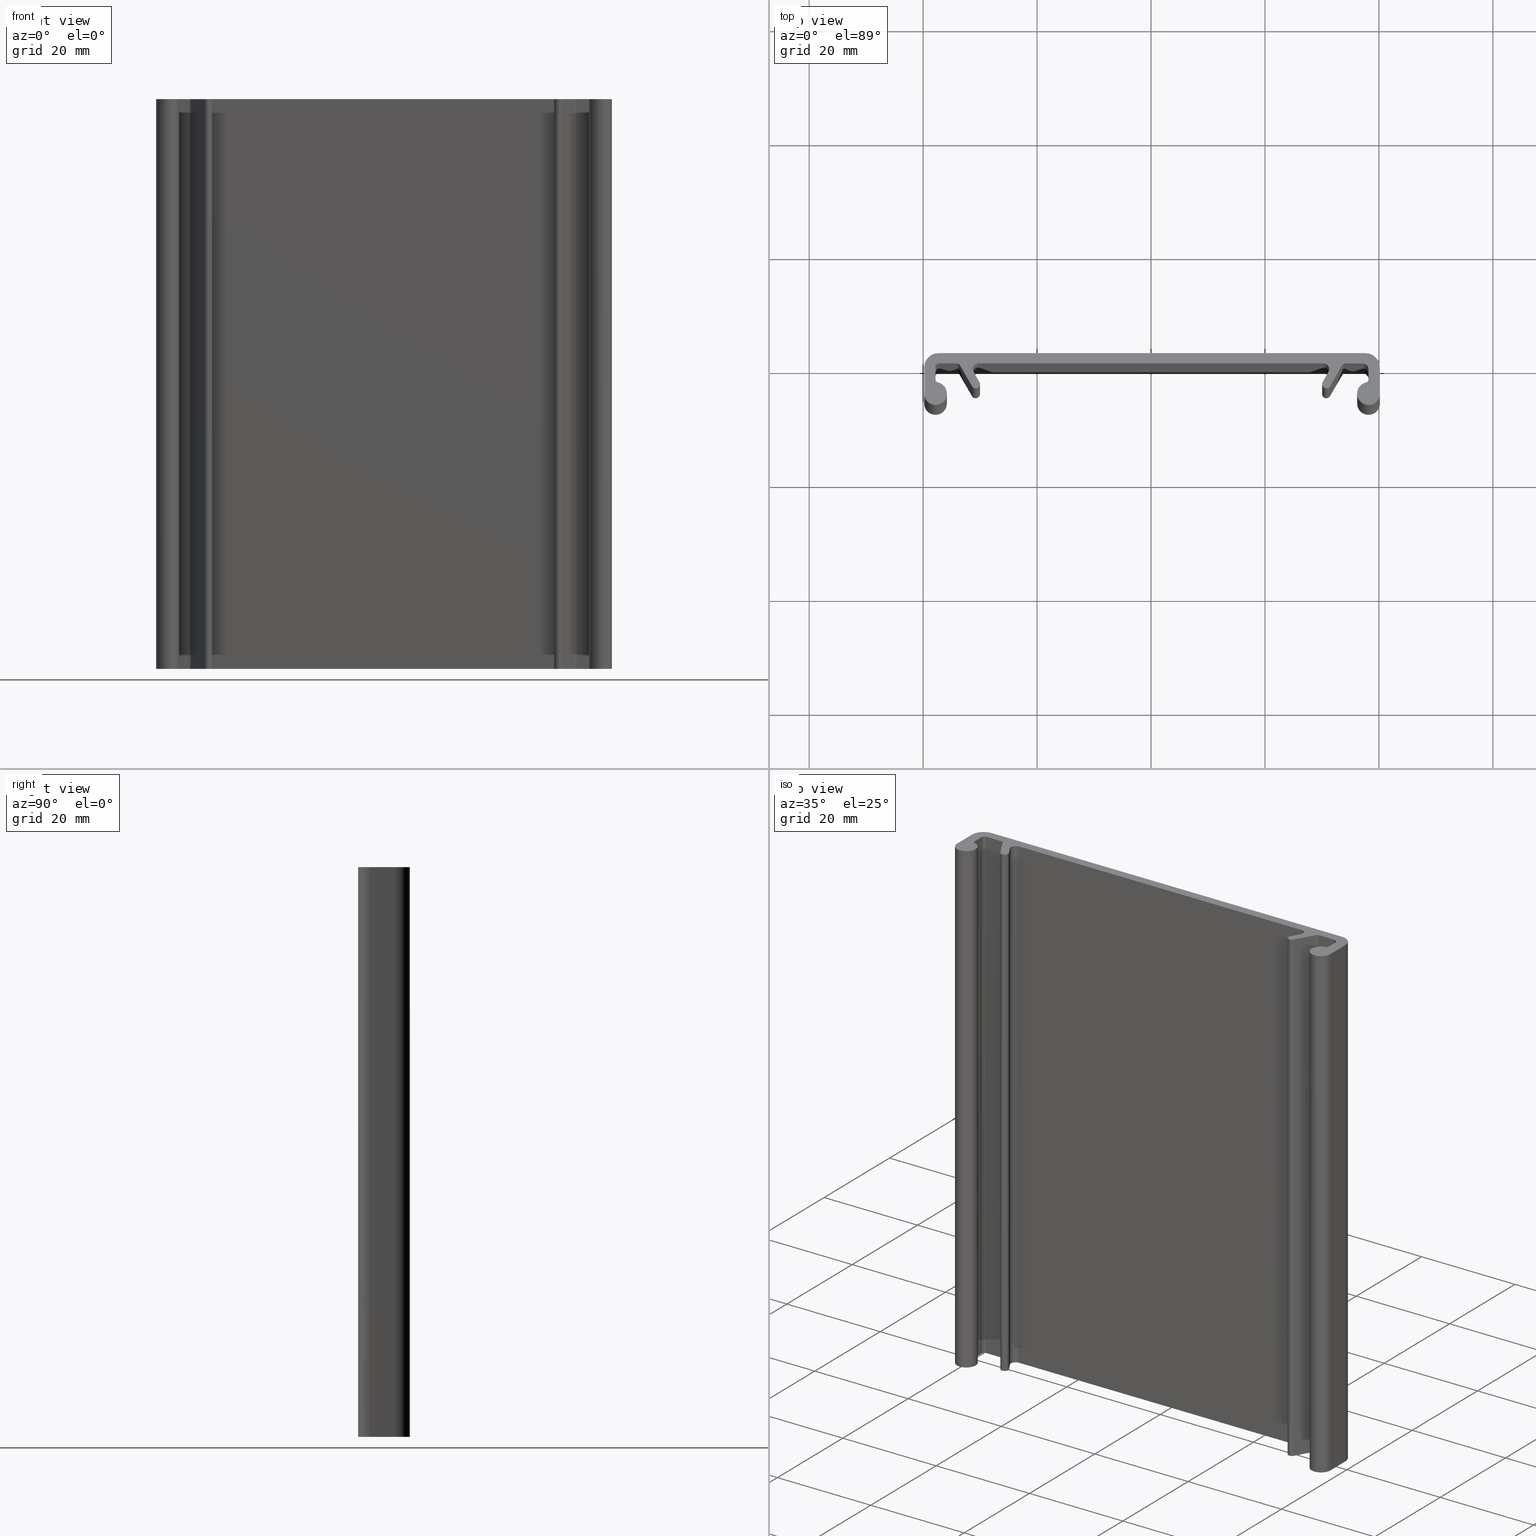
[diagram: canonical four-view strip — front | top / right | iso, engineering-drawing reading convention]
A machine part, canonical four-view strip (front | top / right | iso — engineering-drawing reading convention). The complete STEP part file that produces these views, byte-faithful:
ISO-10303-21;
HEADER;
/* Generated by software containing ST-Developer
 * from STEP Tools, Inc. (www.steptools.com) 
 */

FILE_DESCRIPTION(
/* description */ ('PROF.CANALINA 80X9,3 '),
/* implementation_level */ '2;1');

FILE_NAME(
/* name */ 'C:\\Users\\Tecnico5\\Downloads\\BPRCA0000017.stp',
/* time_stamp */ '2025-02-13T08:32:21+01:00',
/* author */ ('tecnico5'),
/* organization */ (''),
/* preprocessor_version */ 'ST-DEVELOPER v20',
/* originating_system */ 'Autodesk Inventor 2022',
/* authorisation */ '');

FILE_SCHEMA (('AUTOMOTIVE_DESIGN { 1 0 10303 214 3 1 1 }'));
ENDSEC;

DATA;
#10=MECHANICAL_DESIGN_GEOMETRIC_PRESENTATION_REPRESENTATION('',(#13),#946);
#11=SHAPE_REPRESENTATION_RELATIONSHIP('SRR','None',#953,#12);
#12=ADVANCED_BREP_SHAPE_REPRESENTATION('',(#14),#945);
#13=STYLED_ITEM('',(#962),#14);
#14=MANIFOLD_SOLID_BREP('Solido1',#541);
#15=CIRCLE('',#566,0.750000000000084);
#16=CIRCLE('',#567,0.750000000000084);
#17=CIRCLE('',#570,0.5);
#18=CIRCLE('',#571,0.5);
#19=CIRCLE('',#574,0.5);
#20=CIRCLE('',#575,0.5);
#21=CIRCLE('',#578,0.499999999999889);
#22=CIRCLE('',#579,0.499999999999889);
#23=CIRCLE('',#581,2.00000000000017);
#24=CIRCLE('',#582,2.00000000000017);
#25=CIRCLE('',#585,2.49999999999972);
#26=CIRCLE('',#586,2.49999999999972);
#27=CIRCLE('',#589,2.50000000000006);
#28=CIRCLE('',#590,2.50000000000006);
#29=CIRCLE('',#593,1.99999999999978);
#30=CIRCLE('',#594,1.99999999999978);
#31=CIRCLE('',#596,0.499999999999778);
#32=CIRCLE('',#597,0.499999999999778);
#33=CIRCLE('',#600,1.);
#34=CIRCLE('',#601,1.);
#35=CIRCLE('',#604,0.5);
#36=CIRCLE('',#605,0.5);
#37=CIRCLE('',#608,0.750000000000084);
#38=CIRCLE('',#609,0.750000000000084);
#39=CIRCLE('',#612,1.00000000000072);
#40=CIRCLE('',#613,1.00000000000072);
#41=CIRCLE('',#616,1.);
#42=CIRCLE('',#617,1.);
#43=CYLINDRICAL_SURFACE('',#565,0.750000000000084);
#44=CYLINDRICAL_SURFACE('',#569,0.5);
#45=CYLINDRICAL_SURFACE('',#573,0.5);
#46=CYLINDRICAL_SURFACE('',#577,0.499999999999889);
#47=CYLINDRICAL_SURFACE('',#580,2.00000000000017);
#48=CYLINDRICAL_SURFACE('',#584,2.49999999999972);
#49=CYLINDRICAL_SURFACE('',#588,2.50000000000006);
#50=CYLINDRICAL_SURFACE('',#592,1.99999999999978);
#51=CYLINDRICAL_SURFACE('',#595,0.499999999999778);
#52=CYLINDRICAL_SURFACE('',#599,1.);
#53=CYLINDRICAL_SURFACE('',#603,0.5);
#54=CYLINDRICAL_SURFACE('',#607,0.750000000000084);
#55=CYLINDRICAL_SURFACE('',#611,1.00000000000072);
#56=CYLINDRICAL_SURFACE('',#615,1.);
#57=FACE_OUTER_BOUND('',#85,.T.);
#58=FACE_OUTER_BOUND('',#86,.T.);
#59=FACE_OUTER_BOUND('',#87,.T.);
#60=FACE_OUTER_BOUND('',#88,.T.);
#61=FACE_OUTER_BOUND('',#89,.T.);
#62=FACE_OUTER_BOUND('',#90,.T.);
#63=FACE_OUTER_BOUND('',#91,.T.);
#64=FACE_OUTER_BOUND('',#92,.T.);
#65=FACE_OUTER_BOUND('',#93,.T.);
#66=FACE_OUTER_BOUND('',#94,.T.);
#67=FACE_OUTER_BOUND('',#95,.T.);
#68=FACE_OUTER_BOUND('',#96,.T.);
#69=FACE_OUTER_BOUND('',#97,.T.);
#70=FACE_OUTER_BOUND('',#98,.T.);
#71=FACE_OUTER_BOUND('',#99,.T.);
#72=FACE_OUTER_BOUND('',#100,.T.);
#73=FACE_OUTER_BOUND('',#101,.T.);
#74=FACE_OUTER_BOUND('',#102,.T.);
#75=FACE_OUTER_BOUND('',#103,.T.);
#76=FACE_OUTER_BOUND('',#104,.T.);
#77=FACE_OUTER_BOUND('',#105,.T.);
#78=FACE_OUTER_BOUND('',#106,.T.);
#79=FACE_OUTER_BOUND('',#107,.T.);
#80=FACE_OUTER_BOUND('',#108,.T.);
#81=FACE_OUTER_BOUND('',#109,.T.);
#82=FACE_OUTER_BOUND('',#110,.T.);
#83=FACE_OUTER_BOUND('',#111,.T.);
#84=FACE_OUTER_BOUND('',#112,.T.);
#85=EDGE_LOOP('',(#343,#344,#345,#346));
#86=EDGE_LOOP('',(#347,#348,#349,#350));
#87=EDGE_LOOP('',(#351,#352,#353,#354));
#88=EDGE_LOOP('',(#355,#356,#357,#358));
#89=EDGE_LOOP('',(#359,#360,#361,#362));
#90=EDGE_LOOP('',(#363,#364,#365,#366));
#91=EDGE_LOOP('',(#367,#368,#369,#370));
#92=EDGE_LOOP('',(#371,#372,#373,#374));
#93=EDGE_LOOP('',(#375,#376,#377,#378));
#94=EDGE_LOOP('',(#379,#380,#381,#382));
#95=EDGE_LOOP('',(#383,#384,#385,#386));
#96=EDGE_LOOP('',(#387,#388,#389,#390));
#97=EDGE_LOOP('',(#391,#392,#393,#394));
#98=EDGE_LOOP('',(#395,#396,#397,#398));
#99=EDGE_LOOP('',(#399,#400,#401,#402));
#100=EDGE_LOOP('',(#403,#404,#405,#406));
#101=EDGE_LOOP('',(#407,#408,#409,#410));
#102=EDGE_LOOP('',(#411,#412,#413,#414));
#103=EDGE_LOOP('',(#415,#416,#417,#418));
#104=EDGE_LOOP('',(#419,#420,#421,#422));
#105=EDGE_LOOP('',(#423,#424,#425,#426));
#106=EDGE_LOOP('',(#427,#428,#429,#430));
#107=EDGE_LOOP('',(#431,#432,#433,#434));
#108=EDGE_LOOP('',(#435,#436,#437,#438));
#109=EDGE_LOOP('',(#439,#440,#441,#442));
#110=EDGE_LOOP('',(#443,#444,#445,#446));
#111=EDGE_LOOP('',(#447,#448,#449,#450,#451,#452,#453,#454,#455,#456,#457,
#458,#459,#460,#461,#462,#463,#464,#465,#466,#467,#468,#469,#470,#471,#472));
#112=EDGE_LOOP('',(#473,#474,#475,#476,#477,#478,#479,#480,#481,#482,#483,
#484,#485,#486,#487,#488,#489,#490,#491,#492,#493,#494,#495,#496,#497,#498));
#113=LINE('',#788,#163);
#114=LINE('',#790,#164);
#115=LINE('',#792,#165);
#116=LINE('',#793,#166);
#117=LINE('',#799,#167);
#118=LINE('',#802,#168);
#119=LINE('',#804,#169);
#120=LINE('',#805,#170);
#121=LINE('',#811,#171);
#122=LINE('',#814,#172);
#123=LINE('',#816,#173);
#124=LINE('',#817,#174);
#125=LINE('',#823,#175);
#126=LINE('',#826,#176);
#127=LINE('',#828,#177);
#128=LINE('',#829,#178);
#129=LINE('',#835,#179);
#130=LINE('',#841,#180);
#131=LINE('',#844,#181);
#132=LINE('',#846,#182);
#133=LINE('',#847,#183);
#134=LINE('',#853,#184);
#135=LINE('',#856,#185);
#136=LINE('',#858,#186);
#137=LINE('',#859,#187);
#138=LINE('',#865,#188);
#139=LINE('',#868,#189);
#140=LINE('',#870,#190);
#141=LINE('',#871,#191);
#142=LINE('',#877,#192);
#143=LINE('',#883,#193);
#144=LINE('',#886,#194);
#145=LINE('',#888,#195);
#146=LINE('',#889,#196);
#147=LINE('',#895,#197);
#148=LINE('',#898,#198);
#149=LINE('',#900,#199);
#150=LINE('',#901,#200);
#151=LINE('',#907,#201);
#152=LINE('',#910,#202);
#153=LINE('',#912,#203);
#154=LINE('',#913,#204);
#155=LINE('',#919,#205);
#156=LINE('',#922,#206);
#157=LINE('',#924,#207);
#158=LINE('',#925,#208);
#159=LINE('',#931,#209);
#160=LINE('',#934,#210);
#161=LINE('',#936,#211);
#162=LINE('',#937,#212);
#163=VECTOR('',#624,10.);
#164=VECTOR('',#625,10.);
#165=VECTOR('',#626,10.);
#166=VECTOR('',#627,10.);
#167=VECTOR('',#634,10.);
#168=VECTOR('',#637,10.);
#169=VECTOR('',#638,10.);
#170=VECTOR('',#639,10.);
#171=VECTOR('',#646,10.);
#172=VECTOR('',#649,10.);
#173=VECTOR('',#650,10.);
#174=VECTOR('',#651,10.);
#175=VECTOR('',#658,10.);
#176=VECTOR('',#661,10.);
#177=VECTOR('',#662,10.);
#178=VECTOR('',#663,10.);
#179=VECTOR('',#670,10.);
#180=VECTOR('',#677,10.);
#181=VECTOR('',#680,10.);
#182=VECTOR('',#681,10.);
#183=VECTOR('',#682,10.);
#184=VECTOR('',#689,10.);
#185=VECTOR('',#692,10.);
#186=VECTOR('',#693,10.);
#187=VECTOR('',#694,10.);
#188=VECTOR('',#701,10.);
#189=VECTOR('',#704,10.);
#190=VECTOR('',#705,10.);
#191=VECTOR('',#706,10.);
#192=VECTOR('',#713,10.);
#193=VECTOR('',#720,10.);
#194=VECTOR('',#723,10.);
#195=VECTOR('',#724,10.);
#196=VECTOR('',#725,10.);
#197=VECTOR('',#732,10.);
#198=VECTOR('',#735,10.);
#199=VECTOR('',#736,10.);
#200=VECTOR('',#737,10.);
#201=VECTOR('',#744,10.);
#202=VECTOR('',#747,10.);
#203=VECTOR('',#748,10.);
#204=VECTOR('',#749,10.);
#205=VECTOR('',#756,10.);
#206=VECTOR('',#759,10.);
#207=VECTOR('',#760,10.);
#208=VECTOR('',#761,10.);
#209=VECTOR('',#768,10.);
#210=VECTOR('',#771,10.);
#211=VECTOR('',#772,10.);
#212=VECTOR('',#773,10.);
#213=VERTEX_POINT('',#786);
#214=VERTEX_POINT('',#787);
#215=VERTEX_POINT('',#789);
#216=VERTEX_POINT('',#791);
#217=VERTEX_POINT('',#795);
#218=VERTEX_POINT('',#797);
#219=VERTEX_POINT('',#801);
#220=VERTEX_POINT('',#803);
#221=VERTEX_POINT('',#807);
#222=VERTEX_POINT('',#809);
#223=VERTEX_POINT('',#813);
#224=VERTEX_POINT('',#815);
#225=VERTEX_POINT('',#819);
#226=VERTEX_POINT('',#821);
#227=VERTEX_POINT('',#825);
#228=VERTEX_POINT('',#827);
#229=VERTEX_POINT('',#831);
#230=VERTEX_POINT('',#833);
#231=VERTEX_POINT('',#837);
#232=VERTEX_POINT('',#839);
#233=VERTEX_POINT('',#843);
#234=VERTEX_POINT('',#845);
#235=VERTEX_POINT('',#849);
#236=VERTEX_POINT('',#851);
#237=VERTEX_POINT('',#855);
#238=VERTEX_POINT('',#857);
#239=VERTEX_POINT('',#861);
#240=VERTEX_POINT('',#863);
#241=VERTEX_POINT('',#867);
#242=VERTEX_POINT('',#869);
#243=VERTEX_POINT('',#873);
#244=VERTEX_POINT('',#875);
#245=VERTEX_POINT('',#879);
#246=VERTEX_POINT('',#881);
#247=VERTEX_POINT('',#885);
#248=VERTEX_POINT('',#887);
#249=VERTEX_POINT('',#891);
#250=VERTEX_POINT('',#893);
#251=VERTEX_POINT('',#897);
#252=VERTEX_POINT('',#899);
#253=VERTEX_POINT('',#903);
#254=VERTEX_POINT('',#905);
#255=VERTEX_POINT('',#909);
#256=VERTEX_POINT('',#911);
#257=VERTEX_POINT('',#915);
#258=VERTEX_POINT('',#917);
#259=VERTEX_POINT('',#921);
#260=VERTEX_POINT('',#923);
#261=VERTEX_POINT('',#927);
#262=VERTEX_POINT('',#929);
#263=VERTEX_POINT('',#933);
#264=VERTEX_POINT('',#935);
#265=EDGE_CURVE('',#213,#214,#113,.T.);
#266=EDGE_CURVE('',#214,#215,#114,.T.);
#267=EDGE_CURVE('',#216,#215,#115,.T.);
#268=EDGE_CURVE('',#213,#216,#116,.T.);
#269=EDGE_CURVE('',#217,#213,#15,.T.);
#270=EDGE_CURVE('',#218,#216,#16,.T.);
#271=EDGE_CURVE('',#217,#218,#117,.T.);
#272=EDGE_CURVE('',#219,#217,#118,.T.);
#273=EDGE_CURVE('',#220,#218,#119,.T.);
#274=EDGE_CURVE('',#219,#220,#120,.T.);
#275=EDGE_CURVE('',#221,#219,#17,.T.);
#276=EDGE_CURVE('',#222,#220,#18,.T.);
#277=EDGE_CURVE('',#221,#222,#121,.T.);
#278=EDGE_CURVE('',#223,#221,#122,.T.);
#279=EDGE_CURVE('',#224,#222,#123,.T.);
#280=EDGE_CURVE('',#223,#224,#124,.T.);
#281=EDGE_CURVE('',#225,#223,#19,.T.);
#282=EDGE_CURVE('',#226,#224,#20,.T.);
#283=EDGE_CURVE('',#225,#226,#125,.T.);
#284=EDGE_CURVE('',#227,#225,#126,.T.);
#285=EDGE_CURVE('',#228,#226,#127,.T.);
#286=EDGE_CURVE('',#227,#228,#128,.T.);
#287=EDGE_CURVE('',#229,#227,#21,.T.);
#288=EDGE_CURVE('',#230,#228,#22,.T.);
#289=EDGE_CURVE('',#229,#230,#129,.T.);
#290=EDGE_CURVE('',#231,#229,#23,.T.);
#291=EDGE_CURVE('',#232,#230,#24,.T.);
#292=EDGE_CURVE('',#231,#232,#130,.T.);
#293=EDGE_CURVE('',#233,#231,#131,.T.);
#294=EDGE_CURVE('',#234,#232,#132,.T.);
#295=EDGE_CURVE('',#233,#234,#133,.T.);
#296=EDGE_CURVE('',#235,#233,#25,.T.);
#297=EDGE_CURVE('',#236,#234,#26,.T.);
#298=EDGE_CURVE('',#235,#236,#134,.T.);
#299=EDGE_CURVE('',#237,#235,#135,.T.);
#300=EDGE_CURVE('',#238,#236,#136,.T.);
#301=EDGE_CURVE('',#237,#238,#137,.T.);
#302=EDGE_CURVE('',#239,#237,#27,.T.);
#303=EDGE_CURVE('',#240,#238,#28,.T.);
#304=EDGE_CURVE('',#239,#240,#138,.T.);
#305=EDGE_CURVE('',#241,#239,#139,.T.);
#306=EDGE_CURVE('',#242,#240,#140,.T.);
#307=EDGE_CURVE('',#241,#242,#141,.T.);
#308=EDGE_CURVE('',#243,#241,#29,.T.);
#309=EDGE_CURVE('',#244,#242,#30,.T.);
#310=EDGE_CURVE('',#243,#244,#142,.T.);
#311=EDGE_CURVE('',#245,#243,#31,.T.);
#312=EDGE_CURVE('',#246,#244,#32,.T.);
#313=EDGE_CURVE('',#245,#246,#143,.T.);
#314=EDGE_CURVE('',#247,#245,#144,.T.);
#315=EDGE_CURVE('',#248,#246,#145,.T.);
#316=EDGE_CURVE('',#247,#248,#146,.T.);
#317=EDGE_CURVE('',#249,#247,#33,.T.);
#318=EDGE_CURVE('',#250,#248,#34,.T.);
#319=EDGE_CURVE('',#249,#250,#147,.T.);
#320=EDGE_CURVE('',#251,#249,#148,.T.);
#321=EDGE_CURVE('',#252,#250,#149,.T.);
#322=EDGE_CURVE('',#251,#252,#150,.T.);
#323=EDGE_CURVE('',#253,#251,#35,.T.);
#324=EDGE_CURVE('',#254,#252,#36,.T.);
#325=EDGE_CURVE('',#253,#254,#151,.T.);
#326=EDGE_CURVE('',#255,#253,#152,.T.);
#327=EDGE_CURVE('',#256,#254,#153,.T.);
#328=EDGE_CURVE('',#255,#256,#154,.T.);
#329=EDGE_CURVE('',#257,#255,#37,.T.);
#330=EDGE_CURVE('',#258,#256,#38,.T.);
#331=EDGE_CURVE('',#257,#258,#155,.T.);
#332=EDGE_CURVE('',#259,#257,#156,.T.);
#333=EDGE_CURVE('',#260,#258,#157,.T.);
#334=EDGE_CURVE('',#259,#260,#158,.T.);
#335=EDGE_CURVE('',#261,#259,#39,.T.);
#336=EDGE_CURVE('',#262,#260,#40,.T.);
#337=EDGE_CURVE('',#261,#262,#159,.T.);
#338=EDGE_CURVE('',#263,#261,#160,.T.);
#339=EDGE_CURVE('',#264,#262,#161,.T.);
#340=EDGE_CURVE('',#263,#264,#162,.T.);
#341=EDGE_CURVE('',#214,#263,#41,.T.);
#342=EDGE_CURVE('',#215,#264,#42,.T.);
#343=ORIENTED_EDGE('',*,*,#265,.T.);
#344=ORIENTED_EDGE('',*,*,#266,.T.);
#345=ORIENTED_EDGE('',*,*,#267,.F.);
#346=ORIENTED_EDGE('',*,*,#268,.F.);
#347=ORIENTED_EDGE('',*,*,#269,.T.);
#348=ORIENTED_EDGE('',*,*,#268,.T.);
#349=ORIENTED_EDGE('',*,*,#270,.F.);
#350=ORIENTED_EDGE('',*,*,#271,.F.);
#351=ORIENTED_EDGE('',*,*,#272,.T.);
#352=ORIENTED_EDGE('',*,*,#271,.T.);
#353=ORIENTED_EDGE('',*,*,#273,.F.);
#354=ORIENTED_EDGE('',*,*,#274,.F.);
#355=ORIENTED_EDGE('',*,*,#275,.T.);
#356=ORIENTED_EDGE('',*,*,#274,.T.);
#357=ORIENTED_EDGE('',*,*,#276,.F.);
#358=ORIENTED_EDGE('',*,*,#277,.F.);
#359=ORIENTED_EDGE('',*,*,#278,.T.);
#360=ORIENTED_EDGE('',*,*,#277,.T.);
#361=ORIENTED_EDGE('',*,*,#279,.F.);
#362=ORIENTED_EDGE('',*,*,#280,.F.);
#363=ORIENTED_EDGE('',*,*,#281,.T.);
#364=ORIENTED_EDGE('',*,*,#280,.T.);
#365=ORIENTED_EDGE('',*,*,#282,.F.);
#366=ORIENTED_EDGE('',*,*,#283,.F.);
#367=ORIENTED_EDGE('',*,*,#284,.T.);
#368=ORIENTED_EDGE('',*,*,#283,.T.);
#369=ORIENTED_EDGE('',*,*,#285,.F.);
#370=ORIENTED_EDGE('',*,*,#286,.F.);
#371=ORIENTED_EDGE('',*,*,#287,.T.);
#372=ORIENTED_EDGE('',*,*,#286,.T.);
#373=ORIENTED_EDGE('',*,*,#288,.F.);
#374=ORIENTED_EDGE('',*,*,#289,.F.);
#375=ORIENTED_EDGE('',*,*,#290,.T.);
#376=ORIENTED_EDGE('',*,*,#289,.T.);
#377=ORIENTED_EDGE('',*,*,#291,.F.);
#378=ORIENTED_EDGE('',*,*,#292,.F.);
#379=ORIENTED_EDGE('',*,*,#293,.T.);
#380=ORIENTED_EDGE('',*,*,#292,.T.);
#381=ORIENTED_EDGE('',*,*,#294,.F.);
#382=ORIENTED_EDGE('',*,*,#295,.F.);
#383=ORIENTED_EDGE('',*,*,#296,.T.);
#384=ORIENTED_EDGE('',*,*,#295,.T.);
#385=ORIENTED_EDGE('',*,*,#297,.F.);
#386=ORIENTED_EDGE('',*,*,#298,.F.);
#387=ORIENTED_EDGE('',*,*,#299,.T.);
#388=ORIENTED_EDGE('',*,*,#298,.T.);
#389=ORIENTED_EDGE('',*,*,#300,.F.);
#390=ORIENTED_EDGE('',*,*,#301,.F.);
#391=ORIENTED_EDGE('',*,*,#302,.T.);
#392=ORIENTED_EDGE('',*,*,#301,.T.);
#393=ORIENTED_EDGE('',*,*,#303,.F.);
#394=ORIENTED_EDGE('',*,*,#304,.F.);
#395=ORIENTED_EDGE('',*,*,#305,.T.);
#396=ORIENTED_EDGE('',*,*,#304,.T.);
#397=ORIENTED_EDGE('',*,*,#306,.F.);
#398=ORIENTED_EDGE('',*,*,#307,.F.);
#399=ORIENTED_EDGE('',*,*,#308,.T.);
#400=ORIENTED_EDGE('',*,*,#307,.T.);
#401=ORIENTED_EDGE('',*,*,#309,.F.);
#402=ORIENTED_EDGE('',*,*,#310,.F.);
#403=ORIENTED_EDGE('',*,*,#311,.T.);
#404=ORIENTED_EDGE('',*,*,#310,.T.);
#405=ORIENTED_EDGE('',*,*,#312,.F.);
#406=ORIENTED_EDGE('',*,*,#313,.F.);
#407=ORIENTED_EDGE('',*,*,#314,.T.);
#408=ORIENTED_EDGE('',*,*,#313,.T.);
#409=ORIENTED_EDGE('',*,*,#315,.F.);
#410=ORIENTED_EDGE('',*,*,#316,.F.);
#411=ORIENTED_EDGE('',*,*,#317,.T.);
#412=ORIENTED_EDGE('',*,*,#316,.T.);
#413=ORIENTED_EDGE('',*,*,#318,.F.);
#414=ORIENTED_EDGE('',*,*,#319,.F.);
#415=ORIENTED_EDGE('',*,*,#320,.T.);
#416=ORIENTED_EDGE('',*,*,#319,.T.);
#417=ORIENTED_EDGE('',*,*,#321,.F.);
#418=ORIENTED_EDGE('',*,*,#322,.F.);
#419=ORIENTED_EDGE('',*,*,#323,.T.);
#420=ORIENTED_EDGE('',*,*,#322,.T.);
#421=ORIENTED_EDGE('',*,*,#324,.F.);
#422=ORIENTED_EDGE('',*,*,#325,.F.);
#423=ORIENTED_EDGE('',*,*,#326,.T.);
#424=ORIENTED_EDGE('',*,*,#325,.T.);
#425=ORIENTED_EDGE('',*,*,#327,.F.);
#426=ORIENTED_EDGE('',*,*,#328,.F.);
#427=ORIENTED_EDGE('',*,*,#329,.T.);
#428=ORIENTED_EDGE('',*,*,#328,.T.);
#429=ORIENTED_EDGE('',*,*,#330,.F.);
#430=ORIENTED_EDGE('',*,*,#331,.F.);
#431=ORIENTED_EDGE('',*,*,#332,.T.);
#432=ORIENTED_EDGE('',*,*,#331,.T.);
#433=ORIENTED_EDGE('',*,*,#333,.F.);
#434=ORIENTED_EDGE('',*,*,#334,.F.);
#435=ORIENTED_EDGE('',*,*,#335,.T.);
#436=ORIENTED_EDGE('',*,*,#334,.T.);
#437=ORIENTED_EDGE('',*,*,#336,.F.);
#438=ORIENTED_EDGE('',*,*,#337,.F.);
#439=ORIENTED_EDGE('',*,*,#338,.T.);
#440=ORIENTED_EDGE('',*,*,#337,.T.);
#441=ORIENTED_EDGE('',*,*,#339,.F.);
#442=ORIENTED_EDGE('',*,*,#340,.F.);
#443=ORIENTED_EDGE('',*,*,#341,.T.);
#444=ORIENTED_EDGE('',*,*,#340,.T.);
#445=ORIENTED_EDGE('',*,*,#342,.F.);
#446=ORIENTED_EDGE('',*,*,#266,.F.);
#447=ORIENTED_EDGE('',*,*,#342,.T.);
#448=ORIENTED_EDGE('',*,*,#339,.T.);
#449=ORIENTED_EDGE('',*,*,#336,.T.);
#450=ORIENTED_EDGE('',*,*,#333,.T.);
#451=ORIENTED_EDGE('',*,*,#330,.T.);
#452=ORIENTED_EDGE('',*,*,#327,.T.);
#453=ORIENTED_EDGE('',*,*,#324,.T.);
#454=ORIENTED_EDGE('',*,*,#321,.T.);
#455=ORIENTED_EDGE('',*,*,#318,.T.);
#456=ORIENTED_EDGE('',*,*,#315,.T.);
#457=ORIENTED_EDGE('',*,*,#312,.T.);
#458=ORIENTED_EDGE('',*,*,#309,.T.);
#459=ORIENTED_EDGE('',*,*,#306,.T.);
#460=ORIENTED_EDGE('',*,*,#303,.T.);
#461=ORIENTED_EDGE('',*,*,#300,.T.);
#462=ORIENTED_EDGE('',*,*,#297,.T.);
#463=ORIENTED_EDGE('',*,*,#294,.T.);
#464=ORIENTED_EDGE('',*,*,#291,.T.);
#465=ORIENTED_EDGE('',*,*,#288,.T.);
#466=ORIENTED_EDGE('',*,*,#285,.T.);
#467=ORIENTED_EDGE('',*,*,#282,.T.);
#468=ORIENTED_EDGE('',*,*,#279,.T.);
#469=ORIENTED_EDGE('',*,*,#276,.T.);
#470=ORIENTED_EDGE('',*,*,#273,.T.);
#471=ORIENTED_EDGE('',*,*,#270,.T.);
#472=ORIENTED_EDGE('',*,*,#267,.T.);
#473=ORIENTED_EDGE('',*,*,#341,.F.);
#474=ORIENTED_EDGE('',*,*,#265,.F.);
#475=ORIENTED_EDGE('',*,*,#269,.F.);
#476=ORIENTED_EDGE('',*,*,#272,.F.);
#477=ORIENTED_EDGE('',*,*,#275,.F.);
#478=ORIENTED_EDGE('',*,*,#278,.F.);
#479=ORIENTED_EDGE('',*,*,#281,.F.);
#480=ORIENTED_EDGE('',*,*,#284,.F.);
#481=ORIENTED_EDGE('',*,*,#287,.F.);
#482=ORIENTED_EDGE('',*,*,#290,.F.);
#483=ORIENTED_EDGE('',*,*,#293,.F.);
#484=ORIENTED_EDGE('',*,*,#296,.F.);
#485=ORIENTED_EDGE('',*,*,#299,.F.);
#486=ORIENTED_EDGE('',*,*,#302,.F.);
#487=ORIENTED_EDGE('',*,*,#305,.F.);
#488=ORIENTED_EDGE('',*,*,#308,.F.);
#489=ORIENTED_EDGE('',*,*,#311,.F.);
#490=ORIENTED_EDGE('',*,*,#314,.F.);
#491=ORIENTED_EDGE('',*,*,#317,.F.);
#492=ORIENTED_EDGE('',*,*,#320,.F.);
#493=ORIENTED_EDGE('',*,*,#323,.F.);
#494=ORIENTED_EDGE('',*,*,#326,.F.);
#495=ORIENTED_EDGE('',*,*,#329,.F.);
#496=ORIENTED_EDGE('',*,*,#332,.F.);
#497=ORIENTED_EDGE('',*,*,#335,.F.);
#498=ORIENTED_EDGE('',*,*,#338,.F.);
#499=PLANE('',#564);
#500=PLANE('',#568);
#501=PLANE('',#572);
#502=PLANE('',#576);
#503=PLANE('',#583);
#504=PLANE('',#587);
#505=PLANE('',#591);
#506=PLANE('',#598);
#507=PLANE('',#602);
#508=PLANE('',#606);
#509=PLANE('',#610);
#510=PLANE('',#614);
#511=PLANE('',#618);
#512=PLANE('',#619);
#513=ADVANCED_FACE('',(#57),#499,.T.);
#514=ADVANCED_FACE('',(#58),#43,.T.);
#515=ADVANCED_FACE('',(#59),#500,.T.);
#516=ADVANCED_FACE('',(#60),#44,.F.);
#517=ADVANCED_FACE('',(#61),#501,.T.);
#518=ADVANCED_FACE('',(#62),#45,.F.);
#519=ADVANCED_FACE('',(#63),#502,.T.);
#520=ADVANCED_FACE('',(#64),#46,.F.);
#521=ADVANCED_FACE('',(#65),#47,.T.);
#522=ADVANCED_FACE('',(#66),#503,.T.);
#523=ADVANCED_FACE('',(#67),#48,.T.);
#524=ADVANCED_FACE('',(#68),#504,.T.);
#525=ADVANCED_FACE('',(#69),#49,.T.);
#526=ADVANCED_FACE('',(#70),#505,.T.);
#527=ADVANCED_FACE('',(#71),#50,.T.);
#528=ADVANCED_FACE('',(#72),#51,.F.);
#529=ADVANCED_FACE('',(#73),#506,.T.);
#530=ADVANCED_FACE('',(#74),#52,.F.);
#531=ADVANCED_FACE('',(#75),#507,.T.);
#532=ADVANCED_FACE('',(#76),#53,.F.);
#533=ADVANCED_FACE('',(#77),#508,.T.);
#534=ADVANCED_FACE('',(#78),#54,.T.);
#535=ADVANCED_FACE('',(#79),#509,.T.);
#536=ADVANCED_FACE('',(#80),#55,.F.);
#537=ADVANCED_FACE('',(#81),#510,.T.);
#538=ADVANCED_FACE('',(#82),#56,.F.);
#539=ADVANCED_FACE('',(#83),#511,.T.);
#540=ADVANCED_FACE('',(#84),#512,.F.);
#541=CLOSED_SHELL('',(#513,#514,#515,#516,#517,#518,#519,#520,#521,#522,
#523,#524,#525,#526,#527,#528,#529,#530,#531,#532,#533,#534,#535,#536,#537,
#538,#539,#540));
#542=DERIVED_UNIT_ELEMENT(#545,1.);
#543=DERIVED_UNIT_ELEMENT(#948,-3.);
#544=DIMENSIONAL_EXPONENTS(1.,0.,0.,0.,0.,0.,0.);
#545=(
CONVERSION_BASED_UNIT('gram',#547)
MASS_UNIT()
NAMED_UNIT(#544)
);
#546=(
MASS_UNIT()
NAMED_UNIT(*)
SI_UNIT(.KILO.,.GRAM.)
);
#547=MASS_MEASURE_WITH_UNIT(MASS_MEASURE(0.001),#546);
#548=DERIVED_UNIT((#542,#543));
#549=MEASURE_REPRESENTATION_ITEM('density measure',
POSITIVE_RATIO_MEASURE(2.7),#548);
#550=PROPERTY_DEFINITION_REPRESENTATION(#555,#552);
#551=PROPERTY_DEFINITION_REPRESENTATION(#556,#553);
#552=REPRESENTATION('material name',(#554),#945);
#553=REPRESENTATION('density',(#549),#945);
#554=DESCRIPTIVE_REPRESENTATION_ITEM('Alluminio 6060','Alluminio 6060');
#555=PROPERTY_DEFINITION('material property','material name',#955);
#556=PROPERTY_DEFINITION('material property','density of part',#955);
#557=DATE_TIME_ROLE('creation_date');
#558=APPLIED_DATE_AND_TIME_ASSIGNMENT(#559,#557,(#955));
#559=DATE_AND_TIME(#560,#561);
#560=CALENDAR_DATE(2018,30,4);
#561=LOCAL_TIME(0,0,0.,#562);
#562=COORDINATED_UNIVERSAL_TIME_OFFSET(0,0,.BEHIND.);
#563=AXIS2_PLACEMENT_3D('placement',#784,#620,#621);
#564=AXIS2_PLACEMENT_3D('',#785,#622,#623);
#565=AXIS2_PLACEMENT_3D('',#794,#628,#629);
#566=AXIS2_PLACEMENT_3D('',#796,#630,#631);
#567=AXIS2_PLACEMENT_3D('',#798,#632,#633);
#568=AXIS2_PLACEMENT_3D('',#800,#635,#636);
#569=AXIS2_PLACEMENT_3D('',#806,#640,#641);
#570=AXIS2_PLACEMENT_3D('',#808,#642,#643);
#571=AXIS2_PLACEMENT_3D('',#810,#644,#645);
#572=AXIS2_PLACEMENT_3D('',#812,#647,#648);
#573=AXIS2_PLACEMENT_3D('',#818,#652,#653);
#574=AXIS2_PLACEMENT_3D('',#820,#654,#655);
#575=AXIS2_PLACEMENT_3D('',#822,#656,#657);
#576=AXIS2_PLACEMENT_3D('',#824,#659,#660);
#577=AXIS2_PLACEMENT_3D('',#830,#664,#665);
#578=AXIS2_PLACEMENT_3D('',#832,#666,#667);
#579=AXIS2_PLACEMENT_3D('',#834,#668,#669);
#580=AXIS2_PLACEMENT_3D('',#836,#671,#672);
#581=AXIS2_PLACEMENT_3D('',#838,#673,#674);
#582=AXIS2_PLACEMENT_3D('',#840,#675,#676);
#583=AXIS2_PLACEMENT_3D('',#842,#678,#679);
#584=AXIS2_PLACEMENT_3D('',#848,#683,#684);
#585=AXIS2_PLACEMENT_3D('',#850,#685,#686);
#586=AXIS2_PLACEMENT_3D('',#852,#687,#688);
#587=AXIS2_PLACEMENT_3D('',#854,#690,#691);
#588=AXIS2_PLACEMENT_3D('',#860,#695,#696);
#589=AXIS2_PLACEMENT_3D('',#862,#697,#698);
#590=AXIS2_PLACEMENT_3D('',#864,#699,#700);
#591=AXIS2_PLACEMENT_3D('',#866,#702,#703);
#592=AXIS2_PLACEMENT_3D('',#872,#707,#708);
#593=AXIS2_PLACEMENT_3D('',#874,#709,#710);
#594=AXIS2_PLACEMENT_3D('',#876,#711,#712);
#595=AXIS2_PLACEMENT_3D('',#878,#714,#715);
#596=AXIS2_PLACEMENT_3D('',#880,#716,#717);
#597=AXIS2_PLACEMENT_3D('',#882,#718,#719);
#598=AXIS2_PLACEMENT_3D('',#884,#721,#722);
#599=AXIS2_PLACEMENT_3D('',#890,#726,#727);
#600=AXIS2_PLACEMENT_3D('',#892,#728,#729);
#601=AXIS2_PLACEMENT_3D('',#894,#730,#731);
#602=AXIS2_PLACEMENT_3D('',#896,#733,#734);
#603=AXIS2_PLACEMENT_3D('',#902,#738,#739);
#604=AXIS2_PLACEMENT_3D('',#904,#740,#741);
#605=AXIS2_PLACEMENT_3D('',#906,#742,#743);
#606=AXIS2_PLACEMENT_3D('',#908,#745,#746);
#607=AXIS2_PLACEMENT_3D('',#914,#750,#751);
#608=AXIS2_PLACEMENT_3D('',#916,#752,#753);
#609=AXIS2_PLACEMENT_3D('',#918,#754,#755);
#610=AXIS2_PLACEMENT_3D('',#920,#757,#758);
#611=AXIS2_PLACEMENT_3D('',#926,#762,#763);
#612=AXIS2_PLACEMENT_3D('',#928,#764,#765);
#613=AXIS2_PLACEMENT_3D('',#930,#766,#767);
#614=AXIS2_PLACEMENT_3D('',#932,#769,#770);
#615=AXIS2_PLACEMENT_3D('',#938,#774,#775);
#616=AXIS2_PLACEMENT_3D('',#939,#776,#777);
#617=AXIS2_PLACEMENT_3D('',#940,#778,#779);
#618=AXIS2_PLACEMENT_3D('',#941,#780,#781);
#619=AXIS2_PLACEMENT_3D('',#942,#782,#783);
#620=DIRECTION('axis',(0.,0.,1.));
#621=DIRECTION('refdir',(1.,0.,0.));
#622=DIRECTION('center_axis',(0.866025403784374,0.500000000000112,0.));
#623=DIRECTION('ref_axis',(-0.500000000000112,0.866025403784374,0.));
#624=DIRECTION('',(-0.500000000000112,0.866025403784374,0.));
#625=DIRECTION('',(0.,0.,1.));
#626=DIRECTION('',(-0.500000000000112,0.866025403784374,0.));
#627=DIRECTION('',(0.,0.,1.));
#628=DIRECTION('center_axis',(0.,0.,1.));
#629=DIRECTION('ref_axis',(-0.866025403784456,-0.49999999999997,0.));
#630=DIRECTION('center_axis',(0.,0.,1.));
#631=DIRECTION('ref_axis',(-0.866025403784456,-0.49999999999997,0.));
#632=DIRECTION('center_axis',(0.,0.,1.));
#633=DIRECTION('ref_axis',(-0.866025403784456,-0.49999999999997,0.));
#634=DIRECTION('',(0.,0.,1.));
#635=DIRECTION('center_axis',(-0.866025403784455,-0.499999999999971,0.));
#636=DIRECTION('ref_axis',(0.499999999999971,-0.866025403784455,0.));
#637=DIRECTION('',(0.499999999999971,-0.866025403784455,0.));
#638=DIRECTION('',(0.499999999999971,-0.866025403784455,0.));
#639=DIRECTION('',(0.,0.,1.));
#640=DIRECTION('center_axis',(0.,0.,1.));
#641=DIRECTION('ref_axis',(-0.866025403784212,-0.500000000000393,0.));
#642=DIRECTION('center_axis',(0.,0.,-1.));
#643=DIRECTION('ref_axis',(-0.866025403784212,-0.500000000000393,0.));
#644=DIRECTION('center_axis',(0.,0.,-1.));
#645=DIRECTION('ref_axis',(-0.866025403784212,-0.500000000000393,0.));
#646=DIRECTION('',(0.,0.,1.));
#647=DIRECTION('center_axis',(1.02097647993178E-13,-1.,0.));
#648=DIRECTION('ref_axis',(1.,1.02097647993178E-13,0.));
#649=DIRECTION('',(1.,1.02097647993178E-13,0.));
#650=DIRECTION('',(1.,1.02097647993178E-13,0.));
#651=DIRECTION('',(0.,0.,1.));
#652=DIRECTION('center_axis',(0.,0.,1.));
#653=DIRECTION('ref_axis',(9.76996261670054E-14,-1.,0.));
#654=DIRECTION('center_axis',(0.,0.,-1.));
#655=DIRECTION('ref_axis',(9.76996261670054E-14,-1.,0.));
#656=DIRECTION('center_axis',(0.,0.,-1.));
#657=DIRECTION('ref_axis',(9.76996261670054E-14,-1.,0.));
#658=DIRECTION('',(0.,0.,1.));
#659=DIRECTION('center_axis',(1.,-2.47293807334796E-14,0.));
#660=DIRECTION('ref_axis',(2.47293807334796E-14,1.,0.));
#661=DIRECTION('',(2.47293807334796E-14,1.,0.));
#662=DIRECTION('',(2.47293807334796E-14,1.,0.));
#663=DIRECTION('',(0.,0.,1.));
#664=DIRECTION('center_axis',(0.,0.,1.));
#665=DIRECTION('ref_axis',(1.,-1.42108547152099E-12,0.));
#666=DIRECTION('center_axis',(0.,0.,-1.));
#667=DIRECTION('ref_axis',(1.,-1.42108547152099E-12,0.));
#668=DIRECTION('center_axis',(0.,0.,-1.));
#669=DIRECTION('ref_axis',(1.,-1.42108547152099E-12,0.));
#670=DIRECTION('',(0.,0.,1.));
#671=DIRECTION('center_axis',(0.,0.,1.));
#672=DIRECTION('ref_axis',(0.632455532033492,-0.774596669241634,0.));
#673=DIRECTION('center_axis',(0.,0.,1.));
#674=DIRECTION('ref_axis',(-1.,3.01980662698018E-13,0.));
#675=DIRECTION('center_axis',(0.,0.,1.));
#676=DIRECTION('ref_axis',(-1.,3.01980662698018E-13,0.));
#677=DIRECTION('',(0.,0.,1.));
#678=DIRECTION('center_axis',(-1.,1.724420985217E-13,0.));
#679=DIRECTION('ref_axis',(-1.724420985217E-13,-1.,0.));
#680=DIRECTION('',(-1.724420985217E-13,-1.,0.));
#681=DIRECTION('',(-1.724420985217E-13,-1.,0.));
#682=DIRECTION('',(0.,0.,1.));
#683=DIRECTION('center_axis',(0.,0.,1.));
#684=DIRECTION('ref_axis',(1.33226762955027E-13,1.,0.));
#685=DIRECTION('center_axis',(0.,0.,1.));
#686=DIRECTION('ref_axis',(1.33226762955027E-13,1.,0.));
#687=DIRECTION('center_axis',(0.,0.,1.));
#688=DIRECTION('ref_axis',(1.33226762955027E-13,1.,0.));
#689=DIRECTION('',(0.,0.,1.));
#690=DIRECTION('center_axis',(9.47390314346809E-16,1.,0.));
#691=DIRECTION('ref_axis',(-1.,9.47390314346809E-16,0.));
#692=DIRECTION('',(-1.,9.47390314346809E-16,0.));
#693=DIRECTION('',(-1.,9.47390314346809E-16,0.));
#694=DIRECTION('',(0.,0.,1.));
#695=DIRECTION('center_axis',(0.,0.,1.));
#696=DIRECTION('ref_axis',(1.,-1.06048503312192E-11,0.));
#697=DIRECTION('center_axis',(0.,0.,1.));
#698=DIRECTION('ref_axis',(1.,-1.06048503312192E-11,0.));
#699=DIRECTION('center_axis',(0.,0.,1.));
#700=DIRECTION('ref_axis',(1.,-1.06048503312192E-11,0.));
#701=DIRECTION('',(0.,0.,1.));
#702=DIRECTION('center_axis',(1.,-9.30024801015428E-14,0.));
#703=DIRECTION('ref_axis',(9.30024801015428E-14,1.,0.));
#704=DIRECTION('',(9.30024801015428E-14,1.,0.));
#705=DIRECTION('',(9.30024801015428E-14,1.,0.));
#706=DIRECTION('',(0.,0.,1.));
#707=DIRECTION('center_axis',(0.,0.,1.));
#708=DIRECTION('ref_axis',(-0.632455532031278,-0.774596669243441,0.));
#709=DIRECTION('center_axis',(0.,0.,1.));
#710=DIRECTION('ref_axis',(-0.2000000000054,0.979795897112169,0.));
#711=DIRECTION('center_axis',(0.,0.,1.));
#712=DIRECTION('ref_axis',(-0.2000000000054,0.979795897112169,0.));
#713=DIRECTION('',(0.,0.,1.));
#714=DIRECTION('center_axis',(0.,0.,1.));
#715=DIRECTION('ref_axis',(-0.199999999998044,0.97979589711367,0.));
#716=DIRECTION('center_axis',(0.,0.,-1.));
#717=DIRECTION('ref_axis',(-0.199999999998044,0.97979589711367,0.));
#718=DIRECTION('center_axis',(0.,0.,-1.));
#719=DIRECTION('ref_axis',(-0.199999999998044,0.97979589711367,0.));
#720=DIRECTION('',(0.,0.,1.));
#721=DIRECTION('center_axis',(-1.,2.90633713644658E-14,0.));
#722=DIRECTION('ref_axis',(-2.90633713644658E-14,-1.,0.));
#723=DIRECTION('',(-2.90633713644658E-14,-1.,0.));
#724=DIRECTION('',(-2.90633713644658E-14,-1.,0.));
#725=DIRECTION('',(0.,0.,1.));
#726=DIRECTION('center_axis',(0.,0.,1.));
#727=DIRECTION('ref_axis',(-1.,9.59232693276139E-12,0.));
#728=DIRECTION('center_axis',(0.,0.,-1.));
#729=DIRECTION('ref_axis',(-1.,9.59232693276139E-12,0.));
#730=DIRECTION('center_axis',(0.,0.,-1.));
#731=DIRECTION('ref_axis',(-1.,9.59232693276139E-12,0.));
#732=DIRECTION('',(0.,0.,1.));
#733=DIRECTION('center_axis',(-3.94549030800144E-14,-1.,0.));
#734=DIRECTION('ref_axis',(1.,-3.94549030800144E-14,0.));
#735=DIRECTION('',(1.,-3.94549030800144E-14,0.));
#736=DIRECTION('',(1.,-3.94549030800144E-14,0.));
#737=DIRECTION('',(0.,0.,1.));
#738=DIRECTION('center_axis',(0.,0.,1.));
#739=DIRECTION('ref_axis',(-3.26849658449647E-12,-1.,0.));
#740=DIRECTION('center_axis',(0.,0.,-1.));
#741=DIRECTION('ref_axis',(-3.26849658449647E-12,-1.,0.));
#742=DIRECTION('center_axis',(0.,0.,-1.));
#743=DIRECTION('ref_axis',(-3.26849658449647E-12,-1.,0.));
#744=DIRECTION('',(0.,0.,1.));
#745=DIRECTION('center_axis',(0.866025403784418,-0.500000000000037,0.));
#746=DIRECTION('ref_axis',(0.500000000000037,0.866025403784417,0.));
#747=DIRECTION('',(0.500000000000037,0.866025403784417,0.));
#748=DIRECTION('',(0.500000000000037,0.866025403784417,0.));
#749=DIRECTION('',(0.,0.,1.));
#750=DIRECTION('center_axis',(0.,0.,1.));
#751=DIRECTION('ref_axis',(-0.866025403784397,0.500000000000073,0.));
#752=DIRECTION('center_axis',(0.,0.,1.));
#753=DIRECTION('ref_axis',(-0.866025403784397,0.500000000000073,0.));
#754=DIRECTION('center_axis',(0.,0.,1.));
#755=DIRECTION('ref_axis',(-0.866025403784397,0.500000000000073,0.));
#756=DIRECTION('',(0.,0.,1.));
#757=DIRECTION('center_axis',(-0.866025403784576,0.499999999999762,0.));
#758=DIRECTION('ref_axis',(-0.499999999999762,-0.866025403784576,0.));
#759=DIRECTION('',(-0.499999999999762,-0.866025403784576,0.));
#760=DIRECTION('',(-0.499999999999762,-0.866025403784576,0.));
#761=DIRECTION('',(0.,0.,1.));
#762=DIRECTION('center_axis',(0.,0.,1.));
#763=DIRECTION('ref_axis',(-0.866025403772371,0.500000000020902,0.));
#764=DIRECTION('center_axis',(0.,0.,-1.));
#765=DIRECTION('ref_axis',(-0.866025403772371,0.500000000020902,0.));
#766=DIRECTION('center_axis',(0.,0.,-1.));
#767=DIRECTION('ref_axis',(-0.866025403772371,0.500000000020902,0.));
#768=DIRECTION('',(0.,0.,1.));
#769=DIRECTION('center_axis',(8.94961399197132E-15,-1.,0.));
#770=DIRECTION('ref_axis',(1.,8.94961399197132E-15,0.));
#771=DIRECTION('',(1.,8.94961399197132E-15,0.));
#772=DIRECTION('',(1.,8.94961399197132E-15,0.));
#773=DIRECTION('',(0.,0.,1.));
#774=DIRECTION('center_axis',(0.,0.,1.));
#775=DIRECTION('ref_axis',(-3.99680288865054E-14,-1.,0.));
#776=DIRECTION('center_axis',(0.,0.,-1.));
#777=DIRECTION('ref_axis',(-3.99680288865054E-14,-1.,0.));
#778=DIRECTION('center_axis',(0.,0.,-1.));
#779=DIRECTION('ref_axis',(-3.99680288865054E-14,-1.,0.));
#780=DIRECTION('center_axis',(0.,0.,1.));
#781=DIRECTION('ref_axis',(1.,0.,0.));
#782=DIRECTION('center_axis',(0.,0.,1.));
#783=DIRECTION('ref_axis',(1.,0.,0.));
#784=CARTESIAN_POINT('',(0.,0.,0.));
#785=CARTESIAN_POINT('Origin',(-30.1245006475746,-3.2500000000006,0.));
#786=CARTESIAN_POINT('',(-30.1245006475746,-3.2500000000006,0.));
#787=CARTESIAN_POINT('',(-31.1348636186569,-1.5000000000003,0.));
#788=CARTESIAN_POINT('',(-30.1245006475746,-3.2500000000006,0.));
#789=CARTESIAN_POINT('',(-31.1348636186569,-1.5000000000003,100.));
#790=CARTESIAN_POINT('',(-31.1348636186569,-1.5000000000003,0.));
#791=CARTESIAN_POINT('',(-30.1245006475746,-3.2500000000006,100.));
#792=CARTESIAN_POINT('',(-30.1245006475746,-3.2500000000006,100.));
#793=CARTESIAN_POINT('',(-30.1245006475746,-3.2500000000006,0.));
#794=CARTESIAN_POINT('Origin',(-30.774019700413,-3.62500000000065,0.));
#795=CARTESIAN_POINT('',(-31.4235387532515,-4.0000000000007,0.));
#796=CARTESIAN_POINT('Origin',(-30.774019700413,-3.62500000000065,0.));
#797=CARTESIAN_POINT('',(-31.4235387532515,-4.0000000000007,100.));
#798=CARTESIAN_POINT('Origin',(-30.774019700413,-3.62500000000065,100.));
#799=CARTESIAN_POINT('',(-31.4235387532515,-4.0000000000007,0.));
#800=CARTESIAN_POINT('Origin',(-33.5886022627128,-0.250000000000004,0.));
#801=CARTESIAN_POINT('',(-33.5886022627128,-0.250000000000004,0.));
#802=CARTESIAN_POINT('',(-33.5886022627128,-0.250000000000004,0.));
#803=CARTESIAN_POINT('',(-33.5886022627128,-0.250000000000004,100.));
#804=CARTESIAN_POINT('',(-33.5886022627128,-0.250000000000004,100.));
#805=CARTESIAN_POINT('',(-33.5886022627128,-0.250000000000004,0.));
#806=CARTESIAN_POINT('Origin',(-34.0216149646049,-0.500000000000185,0.));
#807=CARTESIAN_POINT('',(-34.0216149646051,-2.1316282072803E-13,0.));
#808=CARTESIAN_POINT('Origin',(-34.0216149646049,-0.500000000000185,0.));
#809=CARTESIAN_POINT('',(-34.0216149646051,-2.1316282072803E-13,100.));
#810=CARTESIAN_POINT('Origin',(-34.0216149646049,-0.500000000000185,100.));
#811=CARTESIAN_POINT('',(-34.0216149646051,-2.1316282072803E-13,0.));
#812=CARTESIAN_POINT('Origin',(-37.3273502691892,-5.50670620214078E-13,
0.));
#813=CARTESIAN_POINT('',(-37.3273502691892,-5.50670620214078E-13,0.));
#814=CARTESIAN_POINT('',(-37.3273502691892,-5.50670620214078E-13,0.));
#815=CARTESIAN_POINT('',(-37.3273502691892,-5.50670620214078E-13,100.));
#816=CARTESIAN_POINT('',(-37.3273502691892,-5.50670620214078E-13,100.));
#817=CARTESIAN_POINT('',(-37.3273502691892,-5.50670620214078E-13,0.));
#818=CARTESIAN_POINT('Origin',(-37.3273502691891,-0.500000000000593,0.));
#819=CARTESIAN_POINT('',(-37.8273502691892,-0.500000000000345,0.));
#820=CARTESIAN_POINT('Origin',(-37.3273502691891,-0.500000000000593,0.));
#821=CARTESIAN_POINT('',(-37.8273502691892,-0.500000000000345,100.));
#822=CARTESIAN_POINT('Origin',(-37.3273502691891,-0.500000000000593,100.));
#823=CARTESIAN_POINT('',(-37.8273502691892,-0.500000000000345,0.));
#824=CARTESIAN_POINT('Origin',(-37.8273502691892,-2.83453469388165,0.));
#825=CARTESIAN_POINT('',(-37.8273502691892,-2.83453469388165,0.));
#826=CARTESIAN_POINT('',(-37.8273502691892,-2.83453469388165,0.));
#827=CARTESIAN_POINT('',(-37.8273502691892,-2.83453469388165,100.));
#828=CARTESIAN_POINT('',(-37.8273502691892,-2.83453469388165,100.));
#829=CARTESIAN_POINT('',(-37.8273502691892,-2.83453469388165,0.));
#830=CARTESIAN_POINT('Origin',(-37.3273502691895,-2.83453469388236,0.));
#831=CARTESIAN_POINT('',(-37.4273502691895,-3.32443264243871,0.));
#832=CARTESIAN_POINT('Origin',(-37.3273502691895,-2.83453469388236,0.));
#833=CARTESIAN_POINT('',(-37.4273502691895,-3.32443264243871,100.));
#834=CARTESIAN_POINT('Origin',(-37.3273502691895,-2.83453469388236,100.));
#835=CARTESIAN_POINT('',(-37.4273502691895,-3.32443264243871,0.));
#836=CARTESIAN_POINT('Origin',(-37.8273502691899,-5.28402443666534,0.));
#837=CARTESIAN_POINT('',(-39.8273502691901,-5.28402443666474,0.));
#838=CARTESIAN_POINT('Origin',(-37.8273502691899,-5.28402443666534,0.));
#839=CARTESIAN_POINT('',(-39.8273502691901,-5.28402443666474,100.));
#840=CARTESIAN_POINT('Origin',(-37.8273502691899,-5.28402443666534,100.));
#841=CARTESIAN_POINT('',(-39.8273502691901,-5.28402443666474,0.));
#842=CARTESIAN_POINT('Origin',(-39.8273502691893,-0.700000000000651,0.));
#843=CARTESIAN_POINT('',(-39.8273502691893,-0.700000000000651,0.));
#844=CARTESIAN_POINT('',(-39.8273502691893,-0.700000000000651,0.));
#845=CARTESIAN_POINT('',(-39.8273502691893,-0.700000000000651,100.));
#846=CARTESIAN_POINT('',(-39.8273502691893,-0.700000000000651,100.));
#847=CARTESIAN_POINT('',(-39.8273502691893,-0.700000000000651,0.));
#848=CARTESIAN_POINT('Origin',(-37.3273502691895,-0.70000000000106,0.));
#849=CARTESIAN_POINT('',(-37.3273502691891,1.79999999999878,0.));
#850=CARTESIAN_POINT('Origin',(-37.3273502691895,-0.70000000000106,0.));
#851=CARTESIAN_POINT('',(-37.3273502691891,1.79999999999878,100.));
#852=CARTESIAN_POINT('Origin',(-37.3273502691895,-0.70000000000106,100.));
#853=CARTESIAN_POINT('',(-37.3273502691891,1.79999999999878,0.));
#854=CARTESIAN_POINT('Origin',(37.6726497308102,1.79999999999871,0.));
#855=CARTESIAN_POINT('',(37.6726497308102,1.79999999999871,0.));
#856=CARTESIAN_POINT('',(37.6726497308102,1.79999999999871,0.));
#857=CARTESIAN_POINT('',(37.6726497308102,1.79999999999871,100.));
#858=CARTESIAN_POINT('',(37.6726497308102,1.79999999999871,100.));
#859=CARTESIAN_POINT('',(37.6726497308102,1.79999999999871,0.));
#860=CARTESIAN_POINT('Origin',(37.6726497308102,-0.700000000001371,0.));
#861=CARTESIAN_POINT('',(40.1726497308103,-0.700000000027883,0.));
#862=CARTESIAN_POINT('Origin',(37.6726497308102,-0.700000000001371,0.));
#863=CARTESIAN_POINT('',(40.1726497308103,-0.700000000027883,100.));
#864=CARTESIAN_POINT('Origin',(37.6726497308102,-0.700000000001371,100.));
#865=CARTESIAN_POINT('',(40.1726497308103,-0.700000000027883,0.));
#866=CARTESIAN_POINT('Origin',(40.1726497308099,-5.28402443669436,0.));
#867=CARTESIAN_POINT('',(40.1726497308099,-5.28402443669436,0.));
#868=CARTESIAN_POINT('',(40.1726497308099,-5.28402443669436,0.));
#869=CARTESIAN_POINT('',(40.1726497308099,-5.28402443669436,100.));
#870=CARTESIAN_POINT('',(40.1726497308099,-5.28402443669436,100.));
#871=CARTESIAN_POINT('',(40.1726497308099,-5.28402443669436,0.));
#872=CARTESIAN_POINT('Origin',(38.1726497308102,-5.28402443669572,0.));
#873=CARTESIAN_POINT('',(37.7726497307995,-3.32443264247177,0.));
#874=CARTESIAN_POINT('Origin',(38.1726497308102,-5.28402443669572,0.));
#875=CARTESIAN_POINT('',(37.7726497307995,-3.32443264247177,100.));
#876=CARTESIAN_POINT('Origin',(38.1726497308102,-5.28402443669572,100.));
#877=CARTESIAN_POINT('',(37.7726497307995,-3.32443264247177,0.));
#878=CARTESIAN_POINT('Origin',(37.6726497308005,-2.83453469391511,0.));
#879=CARTESIAN_POINT('',(38.1726497308004,-2.8345346939154,0.));
#880=CARTESIAN_POINT('Origin',(37.6726497308005,-2.83453469391511,0.));
#881=CARTESIAN_POINT('',(38.1726497308004,-2.8345346939154,100.));
#882=CARTESIAN_POINT('Origin',(37.6726497308005,-2.83453469391511,100.));
#883=CARTESIAN_POINT('',(38.1726497308004,-2.8345346939154,0.));
#884=CARTESIAN_POINT('Origin',(38.1726497308004,-1.00093099688653,0.));
#885=CARTESIAN_POINT('',(38.1726497308004,-1.00093099688653,0.));
#886=CARTESIAN_POINT('',(38.1726497308004,-1.00093099688653,0.));
#887=CARTESIAN_POINT('',(38.1726497308004,-1.00093099688653,100.));
#888=CARTESIAN_POINT('',(38.1726497308004,-1.00093099688653,100.));
#889=CARTESIAN_POINT('',(38.1726497308004,-1.00093099688653,0.));
#890=CARTESIAN_POINT('Origin',(37.1726497308004,-1.00093099687694,0.));
#891=CARTESIAN_POINT('',(37.1726497308007,-0.000930996876942203,0.));
#892=CARTESIAN_POINT('Origin',(37.1726497308004,-1.00093099687694,0.));
#893=CARTESIAN_POINT('',(37.1726497308007,-0.000930996876942203,100.));
#894=CARTESIAN_POINT('Origin',(37.1726497308004,-1.00093099687694,100.));
#895=CARTESIAN_POINT('',(37.1726497308007,-0.000930996876942203,0.));
#896=CARTESIAN_POINT('Origin',(34.021077453311,-0.000930996876817858,0.));
#897=CARTESIAN_POINT('',(34.021077453311,-0.000930996876817858,0.));
#898=CARTESIAN_POINT('',(34.021077453311,-0.000930996876817858,0.));
#899=CARTESIAN_POINT('',(34.021077453311,-0.000930996876817858,100.));
#900=CARTESIAN_POINT('',(34.021077453311,-0.000930996876817858,100.));
#901=CARTESIAN_POINT('',(34.021077453311,-0.000930996876817858,0.));
#902=CARTESIAN_POINT('Origin',(34.0210774533094,-0.500930996876816,0.));
#903=CARTESIAN_POINT('',(33.5880647514171,-0.250930996876875,0.));
#904=CARTESIAN_POINT('Origin',(34.0210774533094,-0.500930996876816,0.));
#905=CARTESIAN_POINT('',(33.5880647514171,-0.250930996876875,100.));
#906=CARTESIAN_POINT('Origin',(34.0210774533094,-0.500930996876816,100.));
#907=CARTESIAN_POINT('',(33.5880647514171,-0.250930996876875,0.));
#908=CARTESIAN_POINT('Origin',(31.4235387532403,-4.00000000002244,0.));
#909=CARTESIAN_POINT('',(31.4235387532403,-4.00000000002244,0.));
#910=CARTESIAN_POINT('',(31.4235387532403,-4.00000000002244,0.));
#911=CARTESIAN_POINT('',(31.4235387532403,-4.00000000002244,100.));
#912=CARTESIAN_POINT('',(31.4235387532403,-4.00000000002244,100.));
#913=CARTESIAN_POINT('',(31.4235387532403,-4.00000000002244,0.));
#914=CARTESIAN_POINT('Origin',(30.7740197004019,-3.62500000002232,0.));
#915=CARTESIAN_POINT('',(30.1245006475635,-3.25000000002221,0.));
#916=CARTESIAN_POINT('Origin',(30.7740197004019,-3.62500000002232,0.));
#917=CARTESIAN_POINT('',(30.1245006475635,-3.25000000002221,100.));
#918=CARTESIAN_POINT('Origin',(30.7740197004019,-3.62500000002232,100.));
#919=CARTESIAN_POINT('',(30.1245006475635,-3.25000000002221,0.));
#920=CARTESIAN_POINT('Origin',(31.134863618645,-1.50000000002172,0.));
#921=CARTESIAN_POINT('',(31.134863618645,-1.50000000002172,0.));
#922=CARTESIAN_POINT('',(31.134863618645,-1.50000000002172,0.));
#923=CARTESIAN_POINT('',(31.134863618645,-1.50000000002172,100.));
#924=CARTESIAN_POINT('',(31.134863618645,-1.50000000002172,100.));
#925=CARTESIAN_POINT('',(31.134863618645,-1.50000000002172,0.));
#926=CARTESIAN_POINT('Origin',(30.268838214872,-1.00000000000046,0.));
#927=CARTESIAN_POINT('',(30.2688382148724,2.66453525910038E-13,0.));
#928=CARTESIAN_POINT('Origin',(30.268838214872,-1.00000000000046,0.));
#929=CARTESIAN_POINT('',(30.2688382148724,2.66453525910038E-13,100.));
#930=CARTESIAN_POINT('Origin',(30.268838214872,-1.00000000000046,100.));
#931=CARTESIAN_POINT('',(30.2688382148724,2.66453525910038E-13,0.));
#932=CARTESIAN_POINT('Origin',(-30.2688382148724,-2.75335310107039E-13,
0.));
#933=CARTESIAN_POINT('',(-30.2688382148724,-2.75335310107039E-13,0.));
#934=CARTESIAN_POINT('',(-30.2688382148724,-2.75335310107039E-13,0.));
#935=CARTESIAN_POINT('',(-30.2688382148724,-2.75335310107039E-13,100.));
#936=CARTESIAN_POINT('',(-30.2688382148724,-2.75335310107039E-13,100.));
#937=CARTESIAN_POINT('',(-30.2688382148724,-2.75335310107039E-13,0.));
#938=CARTESIAN_POINT('Origin',(-30.2688382148725,-1.00000000000028,0.));
#939=CARTESIAN_POINT('Origin',(-30.2688382148725,-1.00000000000028,0.));
#940=CARTESIAN_POINT('Origin',(-30.2688382148725,-1.00000000000028,100.));
#941=CARTESIAN_POINT('Origin',(0.0826150071168762,-0.107393476836437,100.));
#942=CARTESIAN_POINT('Origin',(0.0826150071168762,-0.107393476836437,0.));
#943=UNCERTAINTY_MEASURE_WITH_UNIT(LENGTH_MEASURE(0.01),#947,
'DISTANCE_ACCURACY_VALUE',
'Maximum model space distance between geometric entities at asserted c
onnectivities');
#944=UNCERTAINTY_MEASURE_WITH_UNIT(LENGTH_MEASURE(0.01),#947,
'DISTANCE_ACCURACY_VALUE',
'Maximum model space distance between geometric entities at asserted c
onnectivities');
#945=(
GEOMETRIC_REPRESENTATION_CONTEXT(3)
GLOBAL_UNCERTAINTY_ASSIGNED_CONTEXT((#943))
GLOBAL_UNIT_ASSIGNED_CONTEXT((#947,#949,#950))
REPRESENTATION_CONTEXT('','3D')
);
#946=(
GEOMETRIC_REPRESENTATION_CONTEXT(3)
GLOBAL_UNCERTAINTY_ASSIGNED_CONTEXT((#944))
GLOBAL_UNIT_ASSIGNED_CONTEXT((#947,#949,#950))
REPRESENTATION_CONTEXT('','3D')
);
#947=(
LENGTH_UNIT()
NAMED_UNIT(*)
SI_UNIT(.MILLI.,.METRE.)
);
#948=(
LENGTH_UNIT()
NAMED_UNIT(*)
SI_UNIT(.CENTI.,.METRE.)
);
#949=(
NAMED_UNIT(*)
PLANE_ANGLE_UNIT()
SI_UNIT($,.RADIAN.)
);
#950=(
NAMED_UNIT(*)
SI_UNIT($,.STERADIAN.)
SOLID_ANGLE_UNIT()
);
#951=SHAPE_DEFINITION_REPRESENTATION(#952,#953);
#952=PRODUCT_DEFINITION_SHAPE('',$,#955);
#953=SHAPE_REPRESENTATION('',(#563),#945);
#954=PRODUCT_DEFINITION_CONTEXT('part definition',#959,'design');
#955=PRODUCT_DEFINITION('BPRCA0000017','BPRCA0000017',#956,#954);
#956=PRODUCT_DEFINITION_FORMATION('A',$,#961);
#957=PRODUCT_RELATED_PRODUCT_CATEGORY('BPRCA0000017','BPRCA0000017',(#961));
#958=APPLICATION_PROTOCOL_DEFINITION('international standard',
'automotive_design',2009,#959);
#959=APPLICATION_CONTEXT(
'Core Data for Automotive Mechanical Design Process');
#960=PRODUCT_CONTEXT('part definition',#959,'mechanical');
#961=PRODUCT('BPRCA0000017','BPRCA0000017','PROF.CANALINA 80X9,3 ',(#960));
#962=PRESENTATION_STYLE_ASSIGNMENT((#963));
#963=SURFACE_STYLE_USAGE(.BOTH.,#966);
#964=SURFACE_STYLE_RENDERING_WITH_PROPERTIES($,#970,(#965));
#965=SURFACE_STYLE_TRANSPARENT(0.);
#966=SURFACE_SIDE_STYLE('',(#967,#964));
#967=SURFACE_STYLE_FILL_AREA(#968);
#968=FILL_AREA_STYLE('',(#969));
#969=FILL_AREA_STYLE_COLOUR('',#970);
#970=COLOUR_RGB('',0.956862745098039,0.956862745098039,0.956862745098039);
ENDSEC;
END-ISO-10303-21;
